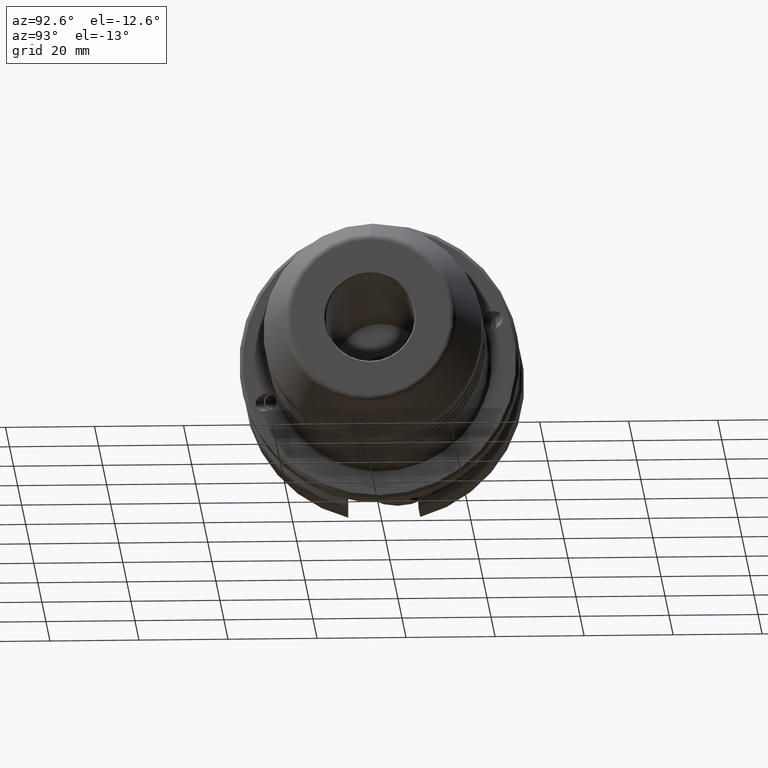
[diagram: clean part render]
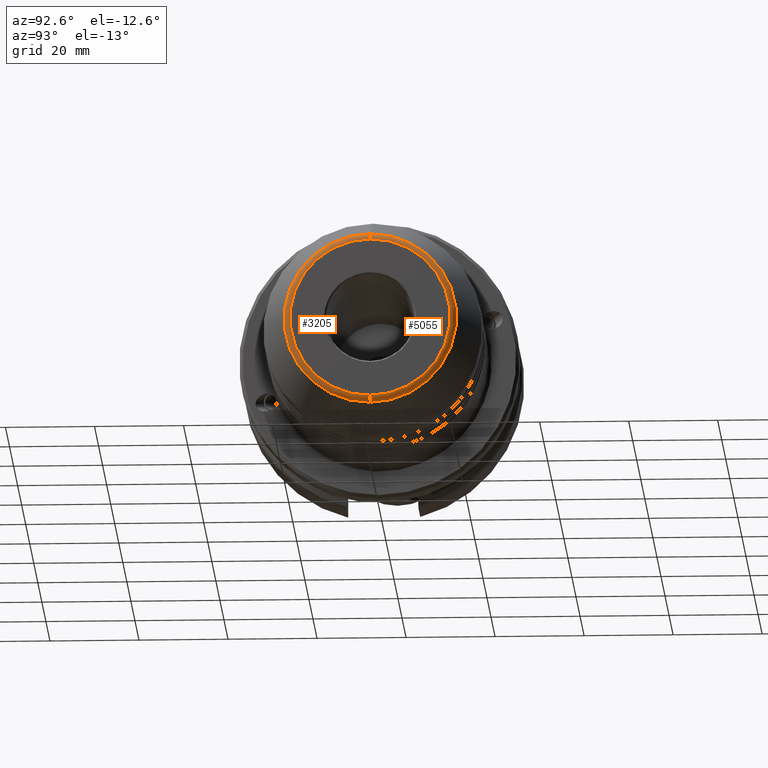
[diagram: same view with one multi-face feature highlighted, each face labeled with its STEP entity id]
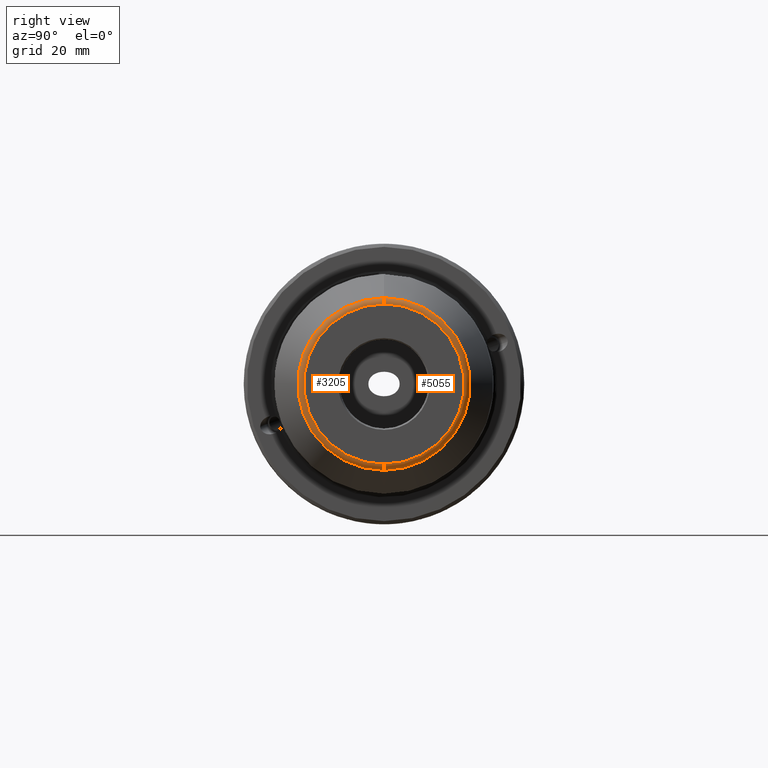
[diagram: same view with one multi-face feature highlighted, each face labeled with its STEP entity id]
A machine part, auxiliary view. The highlighted faces form ONE feature: a constant-radius fillet chain: 2 tangent blend faces with common blend radius 1.5 mm. The faces share edges in the B-rep.
A second angle (right view) of the same feature is appended — it is thin or edge-on in the first view.
Their STEP definitions:
[1] entity #3205 (Torus):
#48 = CARTESIAN_POINT ( 'NONE',  ( 136.4000000000000100, 0.0000000000000000000, -17.98823722472562600 ) ) ;
#129 = CARTESIAN_POINT ( 'NONE',  ( 136.4000000000000100, 0.0000000000000000000, 0.0000000000000000000 ) ) ;
#394 = VERTEX_POINT ( 'NONE', #3167 ) ;
#971 = DIRECTION ( 'NONE',  ( -1.000000000000000000, -0.0000000000000000000, -0.0000000000000000000 ) ) ;
#1103 = CARTESIAN_POINT ( 'NONE',  ( 136.9619098901237400, 2.685551277963980600E-015, -19.37901300657584600 ) ) ;
#1525 = EDGE_CURVE ( 'NONE', #3075, #1586, #6982, .T. ) ;
#1573 = DIRECTION ( 'NONE',  ( 0.0000000000000000000, 1.000000000000000000, -1.224646799147353200E-016 ) ) ;
#1586 = VERTEX_POINT ( 'NONE', #4079 ) ;
#1859 = AXIS2_PLACEMENT_3D ( 'NONE', #129, #5452, #4249 ) ;
#2219 = EDGE_LOOP ( 'NONE', ( #4147, #5802, #6353, #5995 ) ) ;
#2402 = CIRCLE ( 'NONE', #3567, 19.37901300657584600 ) ;
#2437 = DIRECTION ( 'NONE',  ( 0.0000000000000000000, -1.000000000000000000, 0.0000000000000000000 ) ) ;
#2814 = EDGE_CURVE ( 'NONE', #394, #1586, #4231, .T. ) ;
#2949 = EDGE_CURVE ( 'NONE', #3503, #394, #4877, .T. ) ;
#3075 = VERTEX_POINT ( 'NONE', #1103 ) ;
#3167 = CARTESIAN_POINT ( 'NONE',  ( 137.9000000000000100, 2.288084169435077700E-015, 17.98823722472562600 ) ) ;
#3205 = ADVANCED_FACE ( 'NONE', ( #5960 ), #4425, .T. ) ;
#3503 = VERTEX_POINT ( 'NONE', #5099 ) ;
#3566 = AXIS2_PLACEMENT_3D ( 'NONE', #3645, #4821, #6634 ) ;
#3567 = AXIS2_PLACEMENT_3D ( 'NONE', #5673, #971, #5626 ) ;
#3645 = CARTESIAN_POINT ( 'NONE',  ( 137.9000000000000100, 0.0000000000000000000, 0.0000000000000000000 ) ) ;
#4079 = CARTESIAN_POINT ( 'NONE',  ( 137.9000000000000100, 0.0000000000000000000, -17.98823722472562600 ) ) ;
#4147 = ORIENTED_EDGE ( 'NONE', *, *, #2949, .F. ) ;
#4231 = CIRCLE ( 'NONE', #3566, 17.98823722472562600 ) ;
#4249 = DIRECTION ( 'NONE',  ( 0.0000000000000000000, 0.0000000000000000000, -1.000000000000000000 ) ) ;
#4425 = TOROIDAL_SURFACE ( 'NONE', #1859, 17.98823722472562600, 1.499999999999996900 ) ;
#4821 = DIRECTION ( 'NONE',  ( 1.000000000000000000, 0.0000000000000000000, 0.0000000000000000000 ) ) ;
#4877 = CIRCLE ( 'NONE', #6177, 1.499999999999997800 ) ;
#5077 = CARTESIAN_POINT ( 'NONE',  ( 136.4000000000000100, 2.202923713956350900E-015, 17.98823722472562600 ) ) ;
#5099 = CARTESIAN_POINT ( 'NONE',  ( 136.9619098901237400, 0.0000000000000000000, 19.37901300657584600 ) ) ;
#5452 = DIRECTION ( 'NONE',  ( 1.000000000000000000, 0.0000000000000000000, 0.0000000000000000000 ) ) ;
#5626 = DIRECTION ( 'NONE',  ( 0.0000000000000000000, 0.0000000000000000000, -1.000000000000000000 ) ) ;
#5673 = CARTESIAN_POINT ( 'NONE',  ( 136.9619098901237400, 0.0000000000000000000, 0.0000000000000000000 ) ) ;
#5802 = ORIENTED_EDGE ( 'NONE', *, *, #6471, .F. ) ;
#5875 = DIRECTION ( 'NONE',  ( 0.0000000000000000000, 0.0000000000000000000, -1.000000000000000000 ) ) ;
#5960 = FACE_OUTER_BOUND ( 'NONE', #2219, .T. ) ;
#5995 = ORIENTED_EDGE ( 'NONE', *, *, #2814, .F. ) ;
#6014 = AXIS2_PLACEMENT_3D ( 'NONE', #48, #2437, #5875 ) ;
#6177 = AXIS2_PLACEMENT_3D ( 'NONE', #5077, #1573, #7384 ) ;
#6353 = ORIENTED_EDGE ( 'NONE', *, *, #1525, .T. ) ;
#6471 = EDGE_CURVE ( 'NONE', #3075, #3503, #2402, .T. ) ;
#6634 = DIRECTION ( 'NONE',  ( 0.0000000000000000000, 0.0000000000000000000, -1.000000000000000000 ) ) ;
#6982 = CIRCLE ( 'NONE', #6014, 1.499999999999997800 ) ;
#7384 = DIRECTION ( 'NONE',  ( 0.0000000000000000000, 1.224646799147352200E-016, 1.000000000000000000 ) ) ;
[2] entity #5055 (Torus):
#15 = AXIS2_PLACEMENT_3D ( 'NONE', #6554, #6027, #1376 ) ;
#48 = CARTESIAN_POINT ( 'NONE',  ( 136.4000000000000100, 0.0000000000000000000, -17.98823722472562600 ) ) ;
#394 = VERTEX_POINT ( 'NONE', #3167 ) ;
#968 = DIRECTION ( 'NONE',  ( -1.000000000000000000, -0.0000000000000000000, -0.0000000000000000000 ) ) ;
#1103 = CARTESIAN_POINT ( 'NONE',  ( 136.9619098901237400, 2.685551277963980600E-015, -19.37901300657584600 ) ) ;
#1334 = EDGE_CURVE ( 'NONE', #3503, #3075, #1929, .T. ) ;
#1376 = DIRECTION ( 'NONE',  ( 0.0000000000000000000, 0.0000000000000000000, -1.000000000000000000 ) ) ;
#1525 = EDGE_CURVE ( 'NONE', #3075, #1586, #6982, .T. ) ;
#1573 = DIRECTION ( 'NONE',  ( 0.0000000000000000000, 1.000000000000000000, -1.224646799147353200E-016 ) ) ;
#1586 = VERTEX_POINT ( 'NONE', #4079 ) ;
#1595 = ORIENTED_EDGE ( 'NONE', *, *, #3164, .F. ) ;
#1929 = CIRCLE ( 'NONE', #3532, 19.37901300657584600 ) ;
#2437 = DIRECTION ( 'NONE',  ( 0.0000000000000000000, -1.000000000000000000, 0.0000000000000000000 ) ) ;
#2703 = TOROIDAL_SURFACE ( 'NONE', #2999, 17.98823722472562600, 1.499999999999996900 ) ;
#2716 = EDGE_LOOP ( 'NONE', ( #3277, #4976, #1595, #4128 ) ) ;
#2949 = EDGE_CURVE ( 'NONE', #3503, #394, #4877, .T. ) ;
#2999 = AXIS2_PLACEMENT_3D ( 'NONE', #6941, #5750, #6753 ) ;
#3075 = VERTEX_POINT ( 'NONE', #1103 ) ;
#3164 = EDGE_CURVE ( 'NONE', #1586, #394, #6250, .T. ) ;
#3167 = CARTESIAN_POINT ( 'NONE',  ( 137.9000000000000100, 2.288084169435077700E-015, 17.98823722472562600 ) ) ;
#3277 = ORIENTED_EDGE ( 'NONE', *, *, #1334, .F. ) ;
#3503 = VERTEX_POINT ( 'NONE', #5099 ) ;
#3532 = AXIS2_PLACEMENT_3D ( 'NONE', #6259, #968, #5726 ) ;
#4079 = CARTESIAN_POINT ( 'NONE',  ( 137.9000000000000100, 0.0000000000000000000, -17.98823722472562600 ) ) ;
#4128 = ORIENTED_EDGE ( 'NONE', *, *, #1525, .F. ) ;
#4877 = CIRCLE ( 'NONE', #6177, 1.499999999999997800 ) ;
#4976 = ORIENTED_EDGE ( 'NONE', *, *, #2949, .T. ) ;
#5055 = ADVANCED_FACE ( 'NONE', ( #7547 ), #2703, .T. ) ;
#5077 = CARTESIAN_POINT ( 'NONE',  ( 136.4000000000000100, 2.202923713956350900E-015, 17.98823722472562600 ) ) ;
#5099 = CARTESIAN_POINT ( 'NONE',  ( 136.9619098901237400, 0.0000000000000000000, 19.37901300657584600 ) ) ;
#5726 = DIRECTION ( 'NONE',  ( 0.0000000000000000000, 0.0000000000000000000, -1.000000000000000000 ) ) ;
#5750 = DIRECTION ( 'NONE',  ( 1.000000000000000000, 0.0000000000000000000, 0.0000000000000000000 ) ) ;
#5875 = DIRECTION ( 'NONE',  ( 0.0000000000000000000, 0.0000000000000000000, -1.000000000000000000 ) ) ;
#6014 = AXIS2_PLACEMENT_3D ( 'NONE', #48, #2437, #5875 ) ;
#6027 = DIRECTION ( 'NONE',  ( 1.000000000000000000, 0.0000000000000000000, 0.0000000000000000000 ) ) ;
#6177 = AXIS2_PLACEMENT_3D ( 'NONE', #5077, #1573, #7384 ) ;
#6250 = CIRCLE ( 'NONE', #15, 17.98823722472562600 ) ;
#6259 = CARTESIAN_POINT ( 'NONE',  ( 136.9619098901237400, 0.0000000000000000000, 0.0000000000000000000 ) ) ;
#6554 = CARTESIAN_POINT ( 'NONE',  ( 137.9000000000000100, 0.0000000000000000000, 0.0000000000000000000 ) ) ;
#6753 = DIRECTION ( 'NONE',  ( 0.0000000000000000000, 0.0000000000000000000, -1.000000000000000000 ) ) ;
#6941 = CARTESIAN_POINT ( 'NONE',  ( 136.4000000000000100, 0.0000000000000000000, 0.0000000000000000000 ) ) ;
#6982 = CIRCLE ( 'NONE', #6014, 1.499999999999997800 ) ;
#7384 = DIRECTION ( 'NONE',  ( 0.0000000000000000000, 1.224646799147352200E-016, 1.000000000000000000 ) ) ;
#7547 = FACE_OUTER_BOUND ( 'NONE', #2716, .T. ) ;